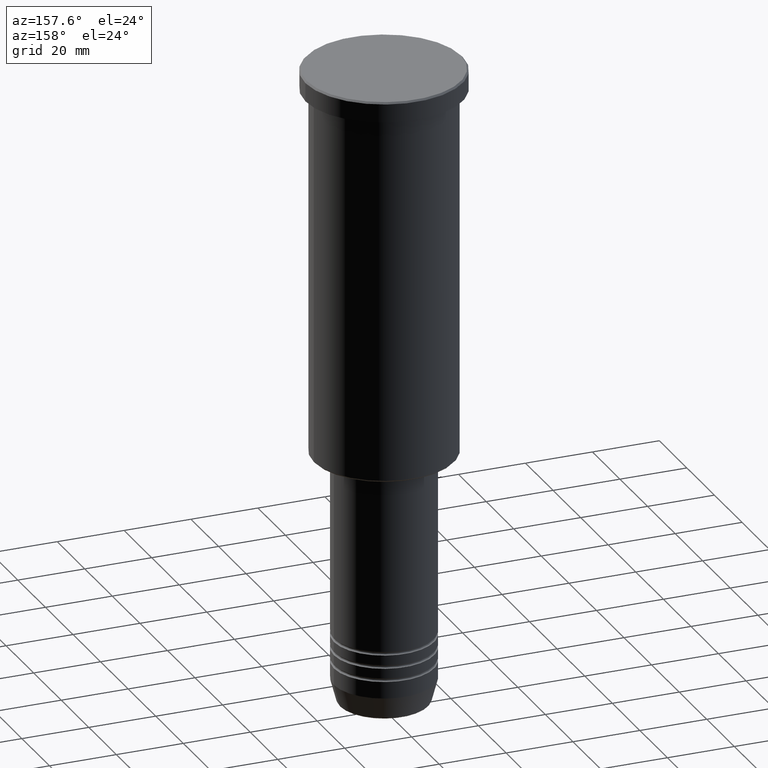
[diagram: clean part render]
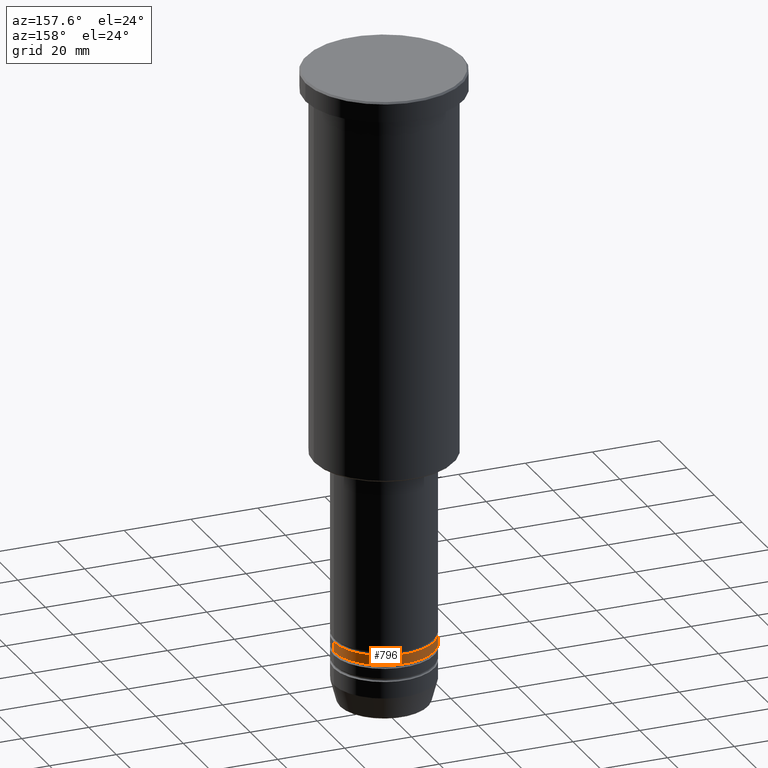
[diagram: same view with one face highlighted and labeled with its STEP entity id]
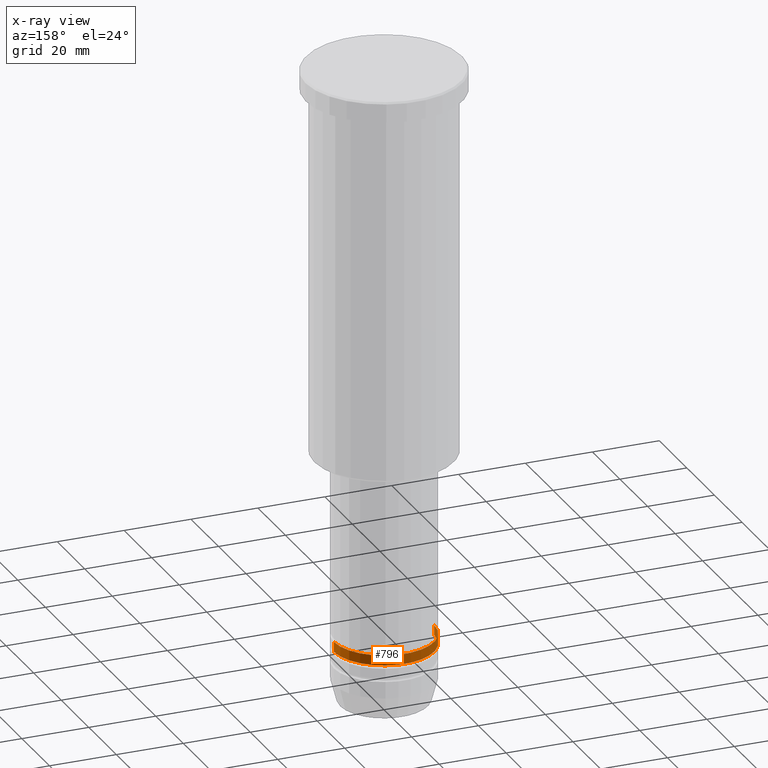
[diagram: x-ray of the same camera — body ghosted, the highlighted face saturated]
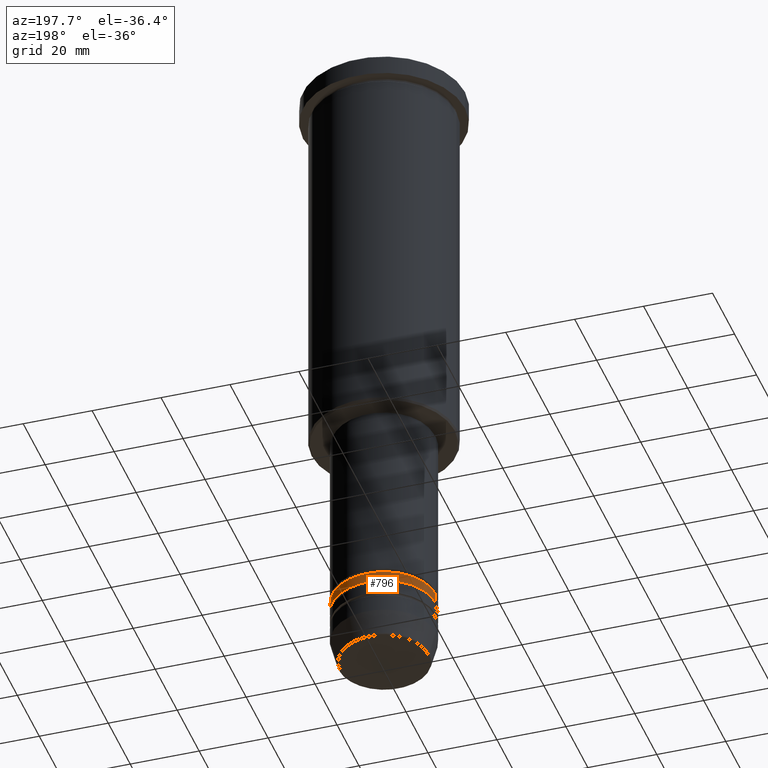
[diagram: same view with one face highlighted and labeled with its STEP entity id]
A machine part, auxiliary view. The second image highlights one B-rep face of the part: STEP entity #796.
The next image is the same camera in x-ray: the body ghosted, the highlighted face saturated — about 0% of this face is hidden behind the body in this view.
A second angle (auxiliary view) of the same face is appended — the face is thin or edge-on in the first view.
In plain terms, the highlighted cylindrical surface (partial cylindrical patch) has radius 15 mm, axis along (-0, -0, 1).
Its self-contained STEP definition (entity closure, byte-faithful):
#4 = ORIENTED_EDGE ( 'NONE', *, *, #126, .F. ) ;
#17 = VERTEX_POINT ( 'NONE', #998 ) ;
#65 = AXIS2_PLACEMENT_3D ( 'NONE', #270, #175, #898 ) ;
#78 = EDGE_CURVE ( 'NONE', #788, #17, #559, .T. ) ;
#102 = CIRCLE ( 'NONE', #306, 15.00000000000000355 ) ;
#126 = EDGE_CURVE ( 'NONE', #708, #788, #1037, .T. ) ;
#130 = LINE ( 'NONE', #411, #1038 ) ;
#167 = ORIENTED_EDGE ( 'NONE', *, *, #78, .F. ) ;
#175 = DIRECTION ( 'NONE',  ( -0.000000000000000000, -0.000000000000000000, 1.000000000000000000 ) ) ;
#189 = CARTESIAN_POINT ( 'NONE',  ( -15.00000000000000533, 1.836970198721030378E-15, -173.9999999999999432 ) ) ;
#203 = CARTESIAN_POINT ( 'NONE',  ( 15.00000000000000355, 0.000000000000000000, -173.9999999999999432 ) ) ;
#209 = CARTESIAN_POINT ( 'NONE',  ( 15.00000000000000178, 0.000000000000000000, 0.000000000000000000 ) ) ;
#237 = DIRECTION ( 'NONE',  ( 1.000000000000000000, 0.000000000000000000, 0.000000000000000000 ) ) ;
#270 = CARTESIAN_POINT ( 'NONE',  ( 0.000000000000000000, 0.000000000000000000, -170.9999999999999147 ) ) ;
#298 = EDGE_CURVE ( 'NONE', #708, #666, #102, .T. ) ;
#306 = AXIS2_PLACEMENT_3D ( 'NONE', #871, #593, #237 ) ;
#385 = DIRECTION ( 'NONE',  ( -0.000000000000000000, -0.000000000000000000, 1.000000000000000000 ) ) ;
#411 = CARTESIAN_POINT ( 'NONE',  ( -15.00000000000000178, 1.836970198721029983E-15, 0.000000000000000000 ) ) ;
#516 = CYLINDRICAL_SURFACE ( 'NONE', #988, 15.00000000000000178 ) ;
#559 = CIRCLE ( 'NONE', #65, 15.00000000000000000 ) ;
#593 = DIRECTION ( 'NONE',  ( -0.000000000000000000, -0.000000000000000000, 1.000000000000000000 ) ) ;
#666 = VERTEX_POINT ( 'NONE', #189 ) ;
#708 = VERTEX_POINT ( 'NONE', #203 ) ;
#788 = VERTEX_POINT ( 'NONE', #977 ) ;
#796 = ADVANCED_FACE ( 'NONE', ( #803 ), #516, .T. ) ;
#803 = FACE_OUTER_BOUND ( 'NONE', #1157, .T. ) ;
#811 = VECTOR ( 'NONE', #1114, 1000.000000000000000 ) ;
#871 = CARTESIAN_POINT ( 'NONE',  ( 0.000000000000000000, 0.000000000000000000, -173.9999999999999432 ) ) ;
#883 = DIRECTION ( 'NONE',  ( 1.000000000000000000, 0.000000000000000000, 0.000000000000000000 ) ) ;
#886 = ORIENTED_EDGE ( 'NONE', *, *, #1045, .T. ) ;
#898 = DIRECTION ( 'NONE',  ( 1.000000000000000000, 0.000000000000000000, 0.000000000000000000 ) ) ;
#977 = CARTESIAN_POINT ( 'NONE',  ( 15.00000000000000000, 0.000000000000000000, -170.9999999999999147 ) ) ;
#988 = AXIS2_PLACEMENT_3D ( 'NONE', #1056, #1070, #883 ) ;
#998 = CARTESIAN_POINT ( 'NONE',  ( -15.00000000000000000, 1.836970198721029983E-15, -170.9999999999999147 ) ) ;
#1037 = LINE ( 'NONE', #209, #811 ) ;
#1038 = VECTOR ( 'NONE', #385, 1000.000000000000000 ) ;
#1045 = EDGE_CURVE ( 'NONE', #666, #17, #130, .T. ) ;
#1056 = CARTESIAN_POINT ( 'NONE',  ( 0.000000000000000000, 0.000000000000000000, 0.000000000000000000 ) ) ;
#1057 = ORIENTED_EDGE ( 'NONE', *, *, #298, .T. ) ;
#1070 = DIRECTION ( 'NONE',  ( -0.000000000000000000, -0.000000000000000000, 1.000000000000000000 ) ) ;
#1114 = DIRECTION ( 'NONE',  ( -0.000000000000000000, -0.000000000000000000, 1.000000000000000000 ) ) ;
#1157 = EDGE_LOOP ( 'NONE', ( #1057, #886, #167, #4 ) ) ;